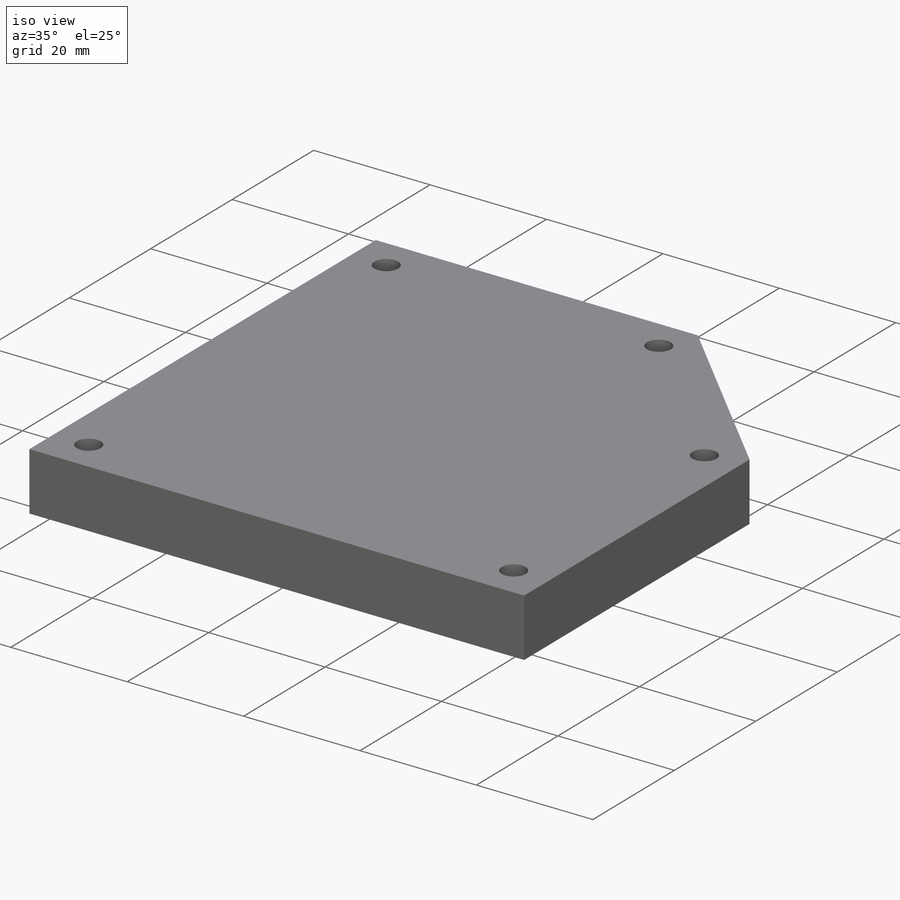
[diagram: iso view]
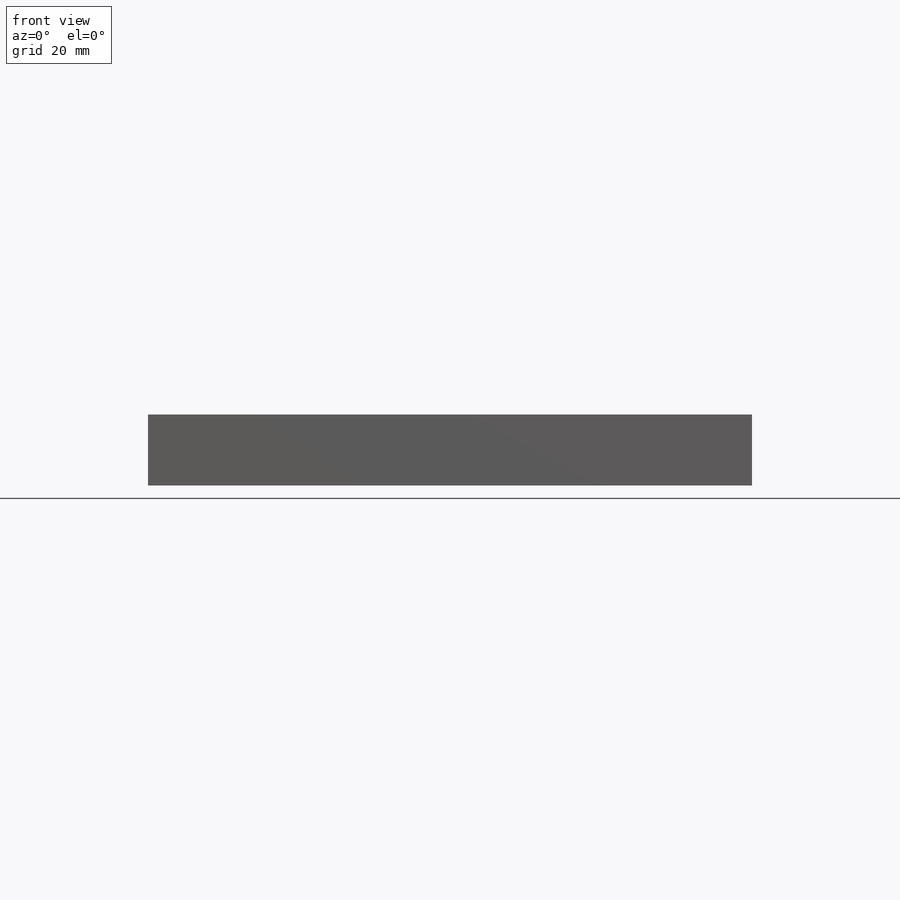
[diagram: front view]
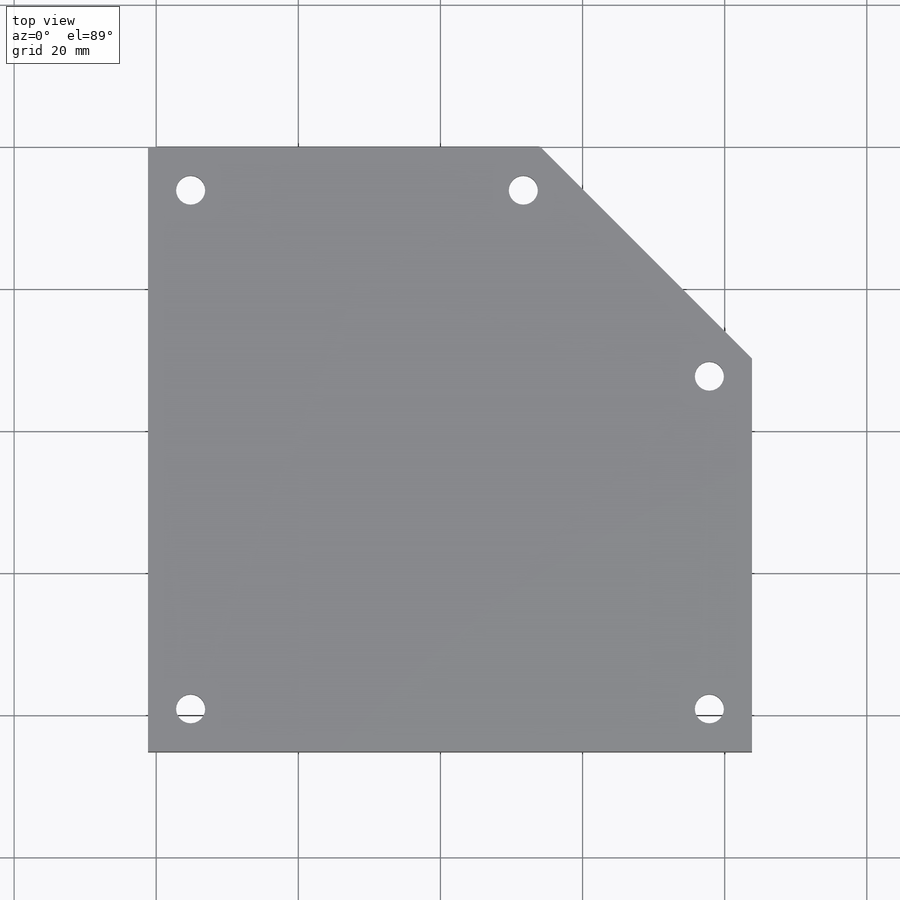
[diagram: top view]
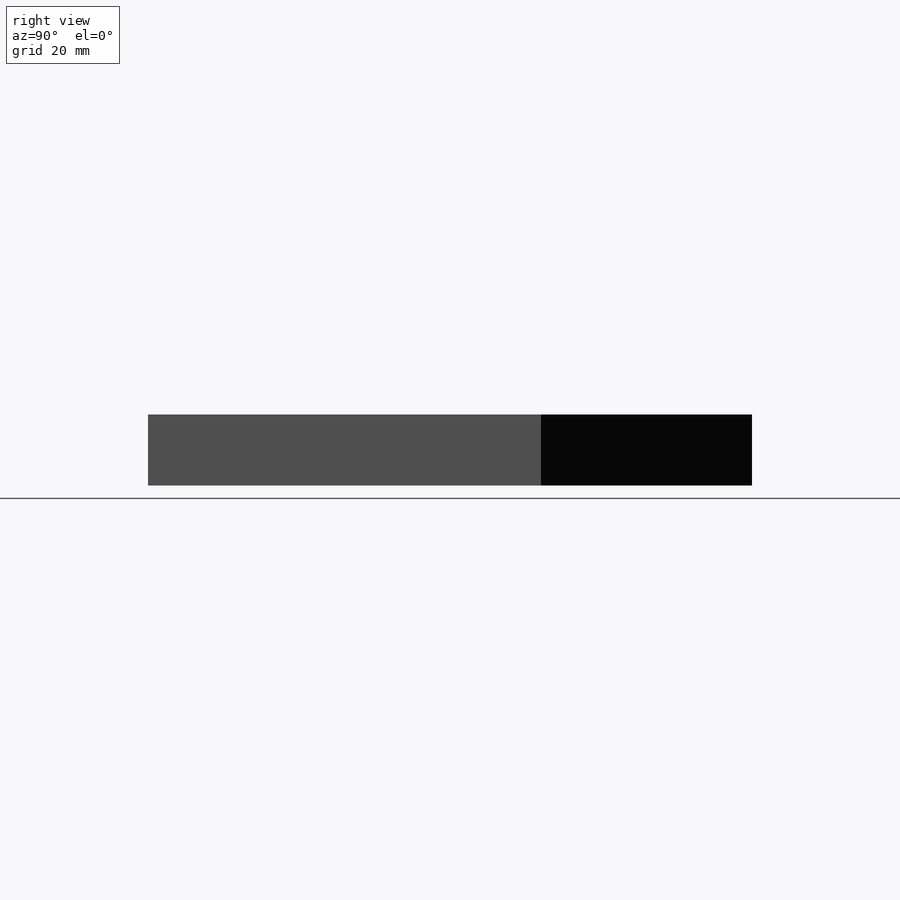
[diagram: right view]
SOLIDWORKS PART (.sldprt)
format: sldprt  version: not decoded by parser v0  size: 181,760 bytes
history: native  units: mm
features: sketch x3, cut_extrude x2, material x1, extrude x1 (+11 scaffold rows collapsed)
feature tree (18):
  scaffold x11  (default folders/planes/origin — collapsed)
  material  "Material <not specified>"
  sketch  "Sketch1"  dims[c1.D1=85.0mm c1.D2=85.0mm c1.D3=42.0mm c1.D4=~19.796063mm c2.D4=135.0deg c2.D5=~29.698485mm c3.D5=135.0deg c4.D5=~50.301515mm]
  extrude  "Boss-Extrude1"  Depth=10mm
  sketch  "Sketch2"  dims[c1.D1=~9.120111mm c1.D2=~9.120111mm c1.D3=~10.171955mm c1.D4=~10.171955mm c1.D5=~11.421447mm c1.D6=~11.421447mm c1.D7=~8.829168mm c1.D8=~8.829168mm c1.D9=~6.527605mm c1.D10=~6.527605mm c1.D11=4.1mm c1.D12=4.1mm c1.D13=4.1mm c1.D14=4.1mm c1.D15=4.1mm c2.D1=6.0mm c2.D2=6.0mm c2.D3=6.0mm c2.D4=6.0mm c2.D5=6.0mm c2.D6=6.0mm c2.D7=6.0mm c2.D8=6.0mm c2.D9=6.0mm c2.D10=6.0mm]
  cut_extrude  "Cut-Extrude3"  [1 undecoded]
  sketch  "Sketch5"  dims[D1=8.0mm D2=8.0mm D3=8.0mm D4=8.0mm D5=8.0mm]
  cut_extrude  "Cut-Extrude4"  Depth=5mm
decode coverage: 5 of 6 modeling features carry decoded parameters
note: ~ marks probable driven/reference dimensions
note: 1 parameter value undecoded
note: suppression state not decoded; provenance and decode notes live in map.json
